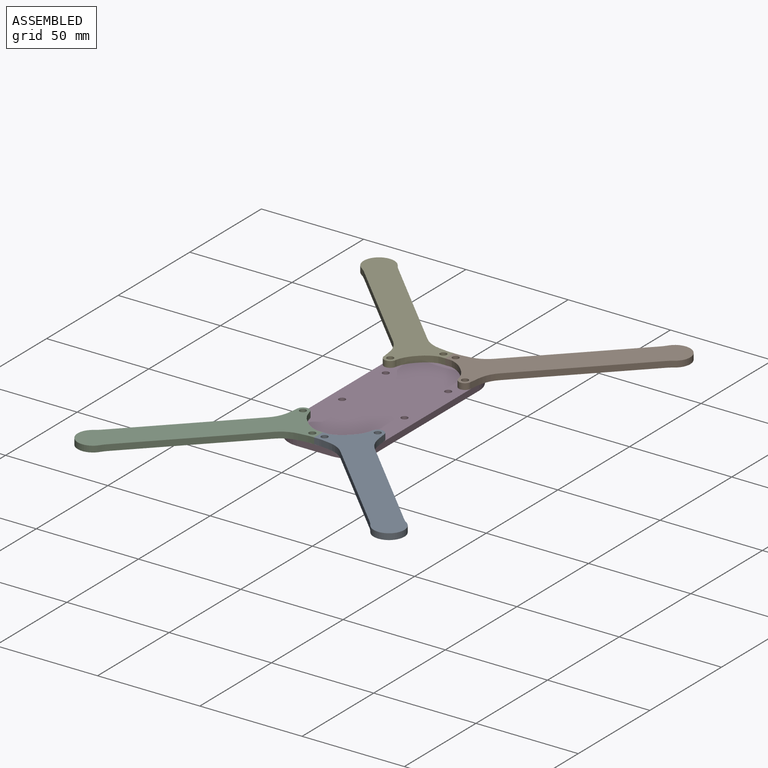
[diagram: assembled view]
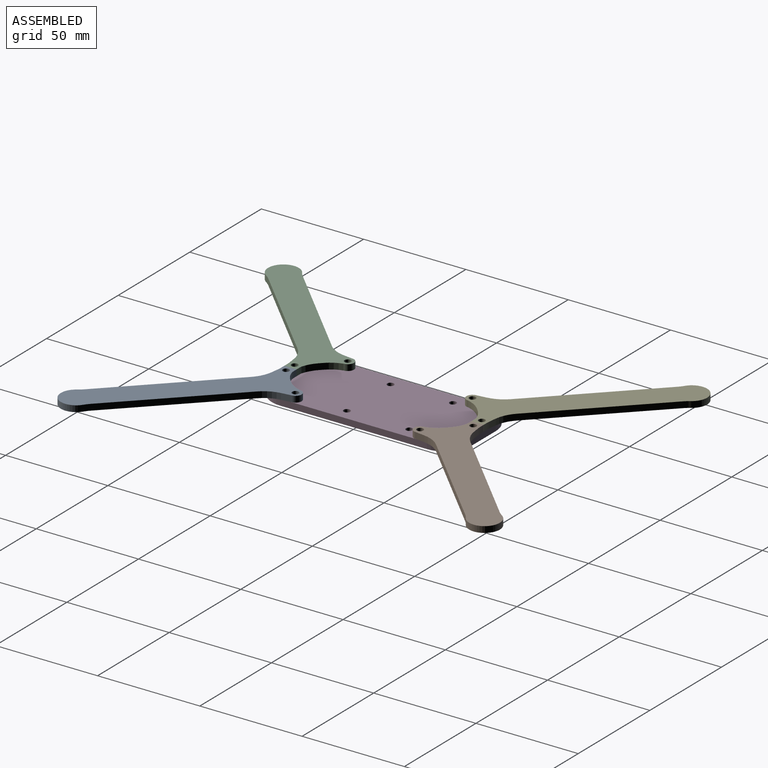
[diagram: assembled view, second angle]
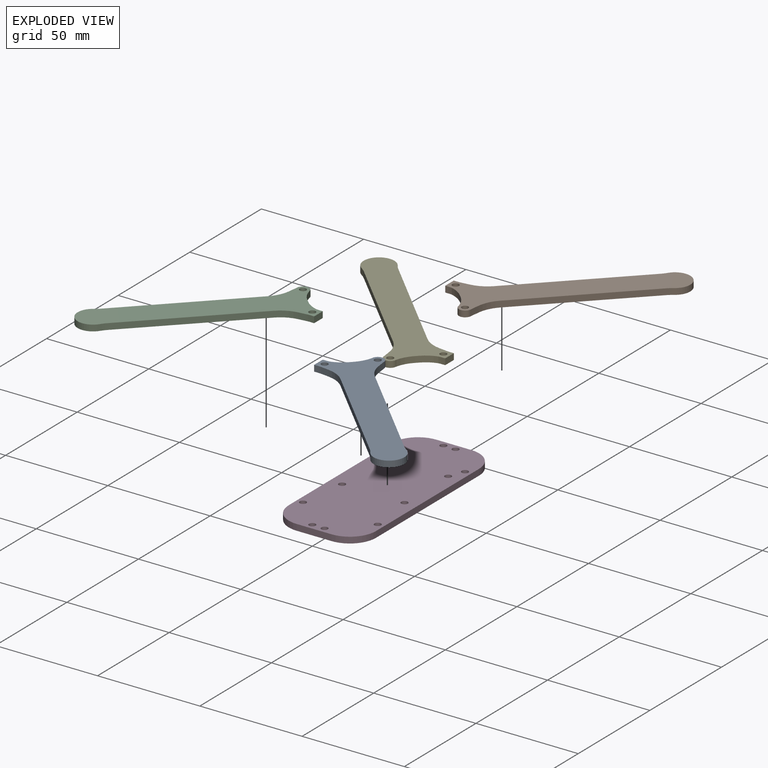
[diagram: exploded view]
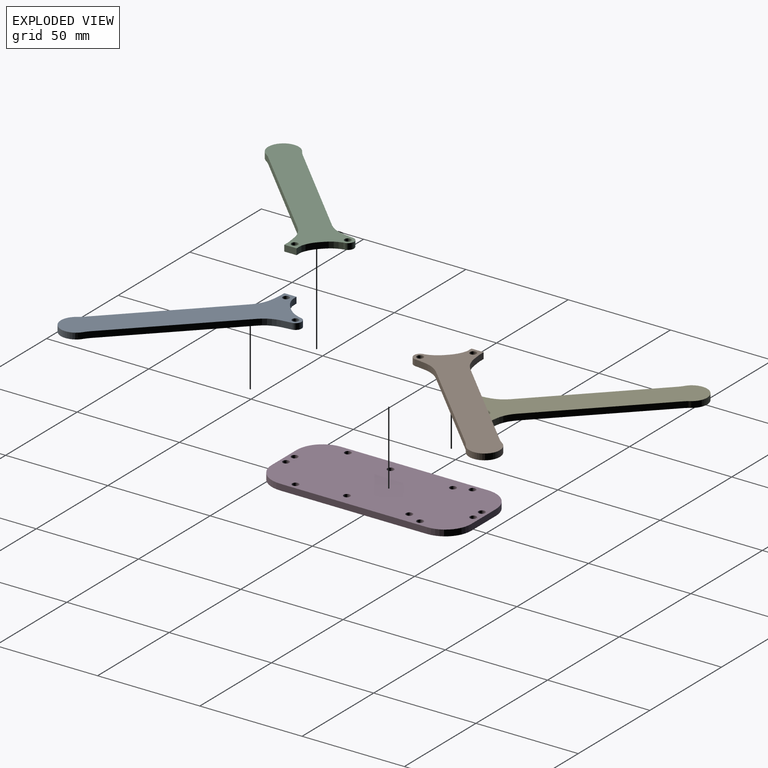
[diagram: exploded view, second angle]
ASSEMBLY  parts=5 mates=4
PART A: 24 faces, bbox 79.9x79.9x3 mm
  f0: cylinder r=7.5mm len=13.8mm, axis (0,0,-1), area 80.2mm2, adj f12,f13,f14,f15
  f1: plane 47.83x47.83mm, normal (-0.71,0.71,0), area 202.9mm2, adj f12,f13,f14,f16
  f2: plane 3.59x3mm, normal (-0.13,0.99,0), area 10.9mm2, adj f12,f13,f16,f17
  f3: plane 3x2.04mm, normal (0,1,0), area 6.1mm2, adj f4,f12,f13,f17
  f4: plane 6x3mm, normal (-1,0,0), area 18mm2, adj f3,f5,f12,f13
  f5: plane 3x1.51mm, normal (0,-1,0), area 4.5mm2, adj f4,f12,f13,f19
  f6: plane 3x1.44mm, normal (-0.71,-0.71,0), area 6.1mm2, adj f12,f13,f18,f21
  f7: cylinder r=3mm len=5.97mm, axis (0,0,-1), area 26.5mm2, adj f12,f13,f20,f22
  f8: plane 3.99x3mm, normal (0.99,-0.13,0), area 12.1mm2, adj f12,f13,f22,f23
  f9: cylinder r=1.6mm len=3.2mm, axis (0,0,-1), area 30.2mm2, adj f12,f13
  f10: plane 47.83x47.83mm, normal (0.71,-0.71,0), area 202.9mm2, adj f12,f13,f15,f23
  f11: cylinder r=1.6mm len=3.2mm, axis (0,0,-1), area 30.2mm2, adj f12,f13
  f12: plane 79.85x79.85mm, normal (0,0,1), area 1415.7mm2, adj f0,f1,f2,f3,f4,f5,f6,f7
  f13: plane 79.85x79.85mm, normal (0,0,-1), area 1415.7mm2, adj f0,f1,f2,f3,f4,f5,f6,f7
  f14: cylinder r=15mm len=3mm, axis (0,0,-1), area 9.5mm2, adj f0,f1,f12,f13
  f15: cylinder r=15mm len=3mm, axis (0,0,-1), area 9.5mm2, adj f0,f10,f12,f13
  f16: cylinder r=15mm len=8.69mm, axis (0,0,-1), area 29.6mm2, adj f1,f2,f12,f13
  f17: cylinder r=15mm len=3mm, axis (0,0,-1), area 5.8mm2, adj f2,f3,f12,f13
  f18: cylinder r=15mm len=6.56mm, axis (0,0,1), area 23mm2, adj f6,f12,f13,f19
  f19: cylinder r=15mm len=3mm, axis (0,0,1), area 5.5mm2, adj f5,f12,f13,f18
  f20: cylinder r=15mm len=3mm, axis (0,0,-1), area 1.2mm2, adj f7,f12,f13,f21
  f21: cylinder r=15mm len=6.86mm, axis (0,0,1), area 24mm2, adj f6,f12,f13,f20
  f22: cylinder r=15mm len=3mm, axis (0,0,-1), area 2.4mm2, adj f7,f8,f12,f13
  f23: cylinder r=15mm len=8.69mm, axis (0,0,1), area 29.6mm2, adj f8,f10,f12,f13
PART B: same geometry as A
PART C: same geometry as A
PART D: 22 faces, bbox 42.7x97.5x3 mm
  f0: plane 71.94x3mm, normal (1,0,0), area 215.8mm2, adj f16,f17,f18,f21
  f1: plane 17.08x3mm, normal (0,1,0), area 51.2mm2, adj f16,f17,f18,f19
  f2: plane 71.94x3mm, normal (-1,0,0), area 215.8mm2, adj f16,f17,f19,f20
  f3: cylinder r=1.6mm len=3.2mm, axis (0,0,-1), area 30.2mm2, adj f16,f17
  f4: cylinder r=1.6mm len=3.2mm, axis (0,0,-1), area 30.2mm2, adj f16,f17
  f5: cylinder r=1.6mm len=3.2mm, axis (0,0,-1), area 30.2mm2, adj f16,f17
  f6: cylinder r=1.6mm len=3.2mm, axis (0,0,-1), area 30.2mm2, adj f16,f17
  f7: cylinder r=1.6mm len=3.2mm, axis (0,0,-1), area 30.2mm2, adj f16,f17
  f8: cylinder r=1.6mm len=3.2mm, axis (0,0,-1), area 30.2mm2, adj f16,f17
  f9: cylinder r=1.6mm len=3.2mm, axis (0,0,-1), area 30.2mm2, adj f16,f17
  f10: cylinder r=1.6mm len=3.2mm, axis (0,0,-1), area 30.2mm2, adj f16,f17
  f11: cylinder r=1.6mm len=3.2mm, axis (0,0,-1), area 30.2mm2, adj f16,f17
  f12: cylinder r=1.6mm len=3.2mm, axis (0,0,-1), area 30.2mm2, adj f16,f17
  f13: cylinder r=1.6mm len=3.2mm, axis (0,0,-1), area 30.2mm2, adj f16,f17
  f14: plane 17.08x3mm, normal (0,-1,0), area 51.2mm2, adj f16,f17,f20,f21
  f15: cylinder r=1.6mm len=3.2mm, axis (0,0,-1), area 30.2mm2, adj f16,f17
  f16: plane 97.53x42.67mm, normal (0,0,1), area 3924mm2, adj f0,f1,f2,f3,f4,f5,f6,f7
  f17: plane 97.53x42.67mm, normal (0,0,-1), area 3924mm2, adj f0,f1,f2,f3,f4,f5,f6,f7
  f18: cylinder r=12.8mm len=12.8mm, axis (0,0,1), area 60.3mm2, adj f0,f1,f16,f17
  f19: cylinder r=12.8mm len=12.8mm, axis (0,0,-1), area 60.3mm2, adj f1,f2,f16,f17
  f20: cylinder r=12.8mm len=12.8mm, axis (0,0,1), area 60.3mm2, adj f2,f14,f16,f17
  f21: cylinder r=12.8mm len=12.8mm, axis (0,0,-1), area 60.3mm2, adj f0,f14,f16,f17
PART E: same geometry as A
PLACE A rot(axis=(1,0,0),180deg) t=(0,-27.45,6)mm
PLACE B t=(0,27.48,3)mm
PLACE C rot(axis=(0,0,1),180deg) t=(0,-27.45,3)mm
PLACE D at identity fixed
PLACE E rot(axis=(0,1,0),180deg) t=(0,27.5,6)mm
MATE fastened B.f7 <-> D.f11  axis (0,0,-1) through (18.28,30.48,3)mm
MATE fastened E.f7 <-> D.f10  axis (0,0,-1) through (-18.28,30.5,3)mm
MATE fastened C.f7 <-> D.f12  axis (0,0,-1) through (-18.28,-30.45,3)mm
MATE fastened A.f7 <-> D.f13  axis (0,0,1) through (18.28,-30.45,3)mm
